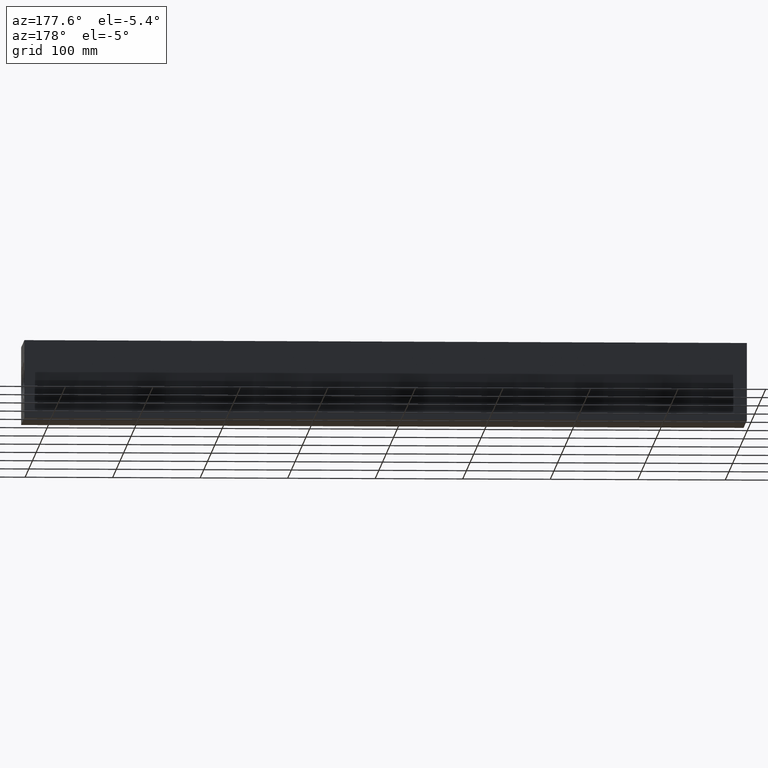
[diagram: clean part render]
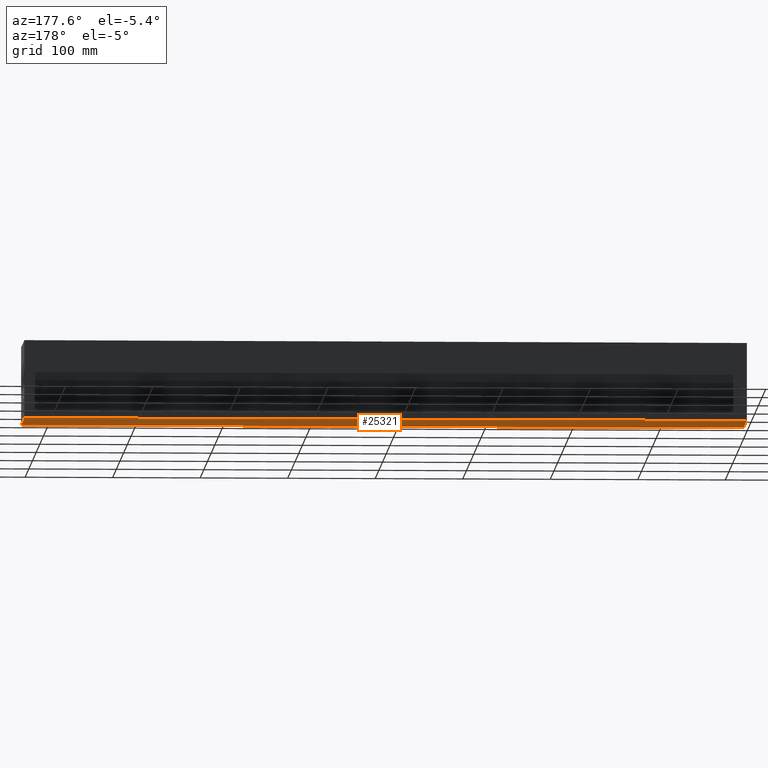
[diagram: same view with one face highlighted and labeled with its STEP entity id]
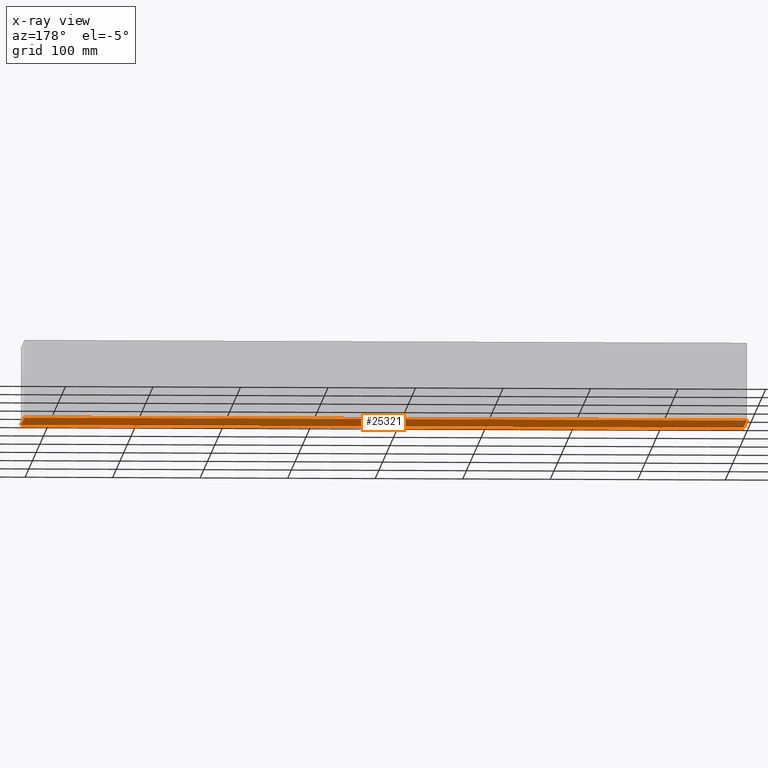
[diagram: x-ray of the same camera — body ghosted, the highlighted face saturated]
A machine part, auxiliary view. The second image highlights one B-rep face of the part: STEP entity #25321.
The next image is the same camera in x-ray: the body ghosted, the highlighted face saturated — about 0% of this face is hidden behind the body in this view.
In plain terms, the highlighted planar face has unit normal (0, 0, 1).
Its self-contained STEP definition (entity closure, byte-faithful):
#3817=FACE_OUTER_BOUND('',#5436,.T.);
#5436=EDGE_LOOP('',(#22602,#22603,#22604,#22605));
#5470=LINE('',#33493,#7518);
#6878=LINE('',#40449,#8926);
#6913=LINE('',#40672,#8961);
#7483=LINE('',#44235,#9531);
#7518=VECTOR('',#27409,10.);
#8926=VECTOR('',#29807,10.);
#8961=VECTOR('',#29878,10.);
#9531=VECTOR('',#33412,10.);
#9555=VERTEX_POINT('',#33491);
#9556=VERTEX_POINT('',#33492);
#10865=VERTEX_POINT('',#40448);
#10907=VERTEX_POINT('',#40671);
#12052=EDGE_CURVE('',#9555,#9556,#5470,.T.);
#13976=EDGE_CURVE('',#9556,#10865,#6878,.T.);
#14035=EDGE_CURVE('',#10907,#9555,#6913,.T.);
#15546=EDGE_CURVE('',#10865,#10907,#7483,.T.);
#22602=ORIENTED_EDGE('',*,*,#12052,.F.);
#22603=ORIENTED_EDGE('',*,*,#14035,.F.);
#22604=ORIENTED_EDGE('',*,*,#15546,.F.);
#22605=ORIENTED_EDGE('',*,*,#13976,.F.);
#23233=PLANE('',#27347);
#25321=ADVANCED_FACE('',(#3817),#23233,.F.);
#27347=AXIS2_PLACEMENT_3D('',#44240,#33420,#33421);
#27409=DIRECTION('',(1.,0.,0.));
#29807=DIRECTION('',(0.,1.,0.));
#29878=DIRECTION('',(0.,-1.,0.));
#33412=DIRECTION('',(-1.,0.,0.));
#33420=DIRECTION('center_axis',(0.,0.,1.));
#33421=DIRECTION('ref_axis',(1.,0.,0.));
#33491=CARTESIAN_POINT('',(0.,0.,0.));
#33492=CARTESIAN_POINT('',(825.5,0.,0.));
#33493=CARTESIAN_POINT('',(0.,0.,0.));
#40448=CARTESIAN_POINT('',(825.5,88.9,0.));
#40449=CARTESIAN_POINT('',(825.5,0.,0.));
#40671=CARTESIAN_POINT('',(0.,88.9,0.));
#40672=CARTESIAN_POINT('',(0.,88.9,0.));
#44235=CARTESIAN_POINT('',(825.5,88.9,0.));
#44240=CARTESIAN_POINT('Origin',(412.75,44.45,0.));